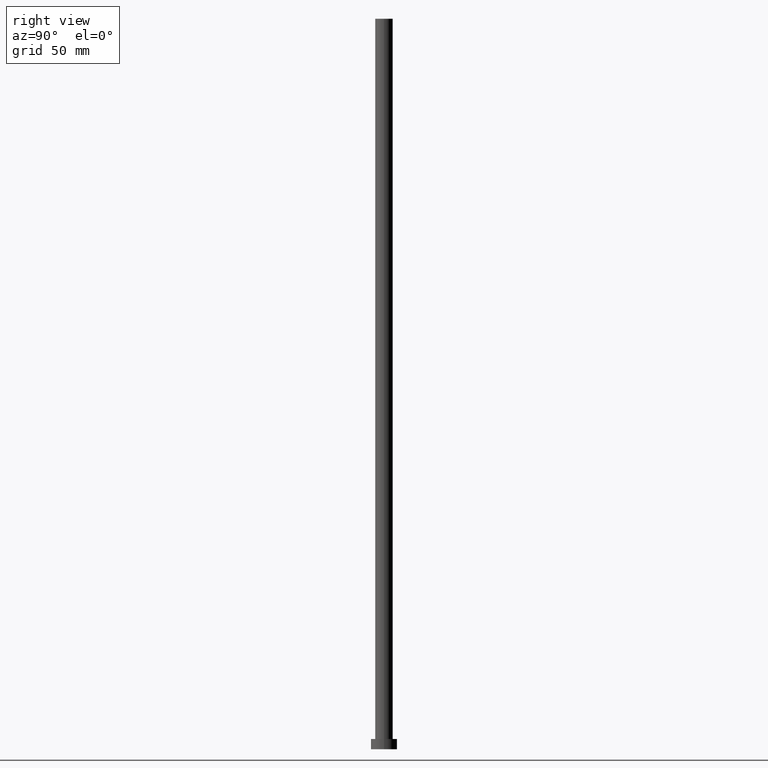
[diagram: clean part render]
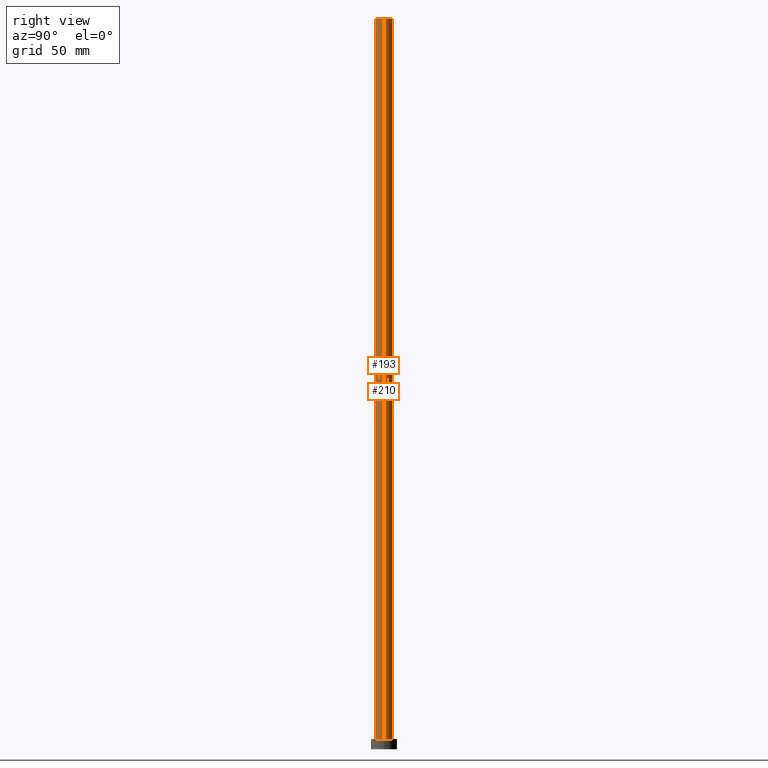
[diagram: same view with one multi-face feature highlighted, each face labeled with its STEP entity id]
A machine part, right view. The highlighted faces form ONE feature: a constant-radius fillet chain: 2 tangent blend faces with common blend radius 6 mm. The faces share edges in the B-rep.
Their STEP definitions:
[1] entity #193 (Cylinder):
#6 = DIRECTION ( 'NONE',  ( 1.000000000000000000, 0.000000000000000000, 0.000000000000000000 ) ) ;
#14 = LINE ( 'NONE', #172, #73 ) ;
#23 = DIRECTION ( 'NONE',  ( -0.000000000000000000, -0.000000000000000000, -1.000000000000000000 ) ) ;
#28 = EDGE_CURVE ( 'NONE', #55, #75, #158, .T. ) ;
#31 = ORIENTED_EDGE ( 'NONE', *, *, #170, .T. ) ;
#37 = ORIENTED_EDGE ( 'NONE', *, *, #162, .F. ) ;
#38 = AXIS2_PLACEMENT_3D ( 'NONE', #169, #151, #6 ) ;
#44 = CARTESIAN_POINT ( 'NONE',  ( 0.000000000000000000, 0.000000000000000000, 7.000000000000000000 ) ) ;
#55 = VERTEX_POINT ( 'NONE', #163 ) ;
#73 = VECTOR ( 'NONE', #78, 1000.000000000000000 ) ;
#75 = VERTEX_POINT ( 'NONE', #224 ) ;
#78 = DIRECTION ( 'NONE',  ( -0.000000000000000000, -0.000000000000000000, -1.000000000000000000 ) ) ;
#94 = DIRECTION ( 'NONE',  ( -0.000000000000000000, -0.000000000000000000, -1.000000000000000000 ) ) ;
#99 = ORIENTED_EDGE ( 'NONE', *, *, #234, .T. ) ;
#113 = VERTEX_POINT ( 'NONE', #211 ) ;
#125 = CARTESIAN_POINT ( 'NONE',  ( 6.000000000000000888, 7.347880794884120722E-16, 500.0000000000000000 ) ) ;
#143 = CIRCLE ( 'NONE', #196, 6.000000000000000888 ) ;
#151 = DIRECTION ( 'NONE',  ( 0.000000000000000000, 0.000000000000000000, 1.000000000000000000 ) ) ;
#153 = CYLINDRICAL_SURFACE ( 'NONE', #235, 6.000000000000000888 ) ;
#158 = CIRCLE ( 'NONE', #38, 6.000000000000000888 ) ;
#160 = VERTEX_POINT ( 'NONE', #190 ) ;
#162 = EDGE_CURVE ( 'NONE', #75, #160, #167, .T. ) ;
#163 = CARTESIAN_POINT ( 'NONE',  ( -6.000000000000000888, 0.000000000000000000, 500.0000000000000000 ) ) ;
#165 = ORIENTED_EDGE ( 'NONE', *, *, #28, .F. ) ;
#167 = LINE ( 'NONE', #125, #173 ) ;
#169 = CARTESIAN_POINT ( 'NONE',  ( 0.000000000000000000, 0.000000000000000000, 500.0000000000000000 ) ) ;
#170 = EDGE_CURVE ( 'NONE', #55, #113, #14, .T. ) ;
#172 = CARTESIAN_POINT ( 'NONE',  ( -6.000000000000000888, 0.000000000000000000, 500.0000000000000000 ) ) ;
#173 = VECTOR ( 'NONE', #94, 1000.000000000000000 ) ;
#190 = CARTESIAN_POINT ( 'NONE',  ( 6.000000000000000888, 7.347880794884120722E-16, 7.000000000000000000 ) ) ;
#193 = ADVANCED_FACE ( 'NONE', ( #239 ), #153, .T. ) ;
#196 = AXIS2_PLACEMENT_3D ( 'NONE', #44, #252, #230 ) ;
#204 = EDGE_LOOP ( 'NONE', ( #37, #165, #31, #99 ) ) ;
#211 = CARTESIAN_POINT ( 'NONE',  ( -6.000000000000000888, 0.000000000000000000, 7.000000000000000000 ) ) ;
#224 = CARTESIAN_POINT ( 'NONE',  ( 6.000000000000000888, 7.347880794884120722E-16, 500.0000000000000000 ) ) ;
#226 = DIRECTION ( 'NONE',  ( -1.000000000000000000, 0.000000000000000000, 0.000000000000000000 ) ) ;
#230 = DIRECTION ( 'NONE',  ( 1.000000000000000000, 0.000000000000000000, 0.000000000000000000 ) ) ;
#231 = CARTESIAN_POINT ( 'NONE',  ( 0.000000000000000000, 0.000000000000000000, 500.0000000000000000 ) ) ;
#234 = EDGE_CURVE ( 'NONE', #113, #160, #143, .T. ) ;
#235 = AXIS2_PLACEMENT_3D ( 'NONE', #231, #23, #226 ) ;
#239 = FACE_OUTER_BOUND ( 'NONE', #204, .T. ) ;
#252 = DIRECTION ( 'NONE',  ( 0.000000000000000000, 0.000000000000000000, 1.000000000000000000 ) ) ;
[2] entity #210 (Cylinder):
#3 = DIRECTION ( 'NONE',  ( 0.000000000000000000, 0.000000000000000000, 1.000000000000000000 ) ) ;
#9 = ORIENTED_EDGE ( 'NONE', *, *, #106, .F. ) ;
#12 = DIRECTION ( 'NONE',  ( -1.000000000000000000, 0.000000000000000000, 0.000000000000000000 ) ) ;
#14 = LINE ( 'NONE', #172, #73 ) ;
#33 = EDGE_CURVE ( 'NONE', #160, #113, #134, .T. ) ;
#55 = VERTEX_POINT ( 'NONE', #163 ) ;
#73 = VECTOR ( 'NONE', #78, 1000.000000000000000 ) ;
#75 = VERTEX_POINT ( 'NONE', #224 ) ;
#78 = DIRECTION ( 'NONE',  ( -0.000000000000000000, -0.000000000000000000, -1.000000000000000000 ) ) ;
#88 = AXIS2_PLACEMENT_3D ( 'NONE', #183, #89, #12 ) ;
#89 = DIRECTION ( 'NONE',  ( -0.000000000000000000, -0.000000000000000000, -1.000000000000000000 ) ) ;
#94 = DIRECTION ( 'NONE',  ( -0.000000000000000000, -0.000000000000000000, -1.000000000000000000 ) ) ;
#106 = EDGE_CURVE ( 'NONE', #75, #55, #227, .T. ) ;
#107 = FACE_OUTER_BOUND ( 'NONE', #111, .T. ) ;
#111 = EDGE_LOOP ( 'NONE', ( #9, #246, #119, #131 ) ) ;
#112 = DIRECTION ( 'NONE',  ( 1.000000000000000000, 0.000000000000000000, 0.000000000000000000 ) ) ;
#113 = VERTEX_POINT ( 'NONE', #211 ) ;
#119 = ORIENTED_EDGE ( 'NONE', *, *, #33, .T. ) ;
#125 = CARTESIAN_POINT ( 'NONE',  ( 6.000000000000000888, 7.347880794884120722E-16, 500.0000000000000000 ) ) ;
#131 = ORIENTED_EDGE ( 'NONE', *, *, #170, .F. ) ;
#134 = CIRCLE ( 'NONE', #161, 6.000000000000000888 ) ;
#160 = VERTEX_POINT ( 'NONE', #190 ) ;
#161 = AXIS2_PLACEMENT_3D ( 'NONE', #216, #3, #208 ) ;
#162 = EDGE_CURVE ( 'NONE', #75, #160, #167, .T. ) ;
#163 = CARTESIAN_POINT ( 'NONE',  ( -6.000000000000000888, 0.000000000000000000, 500.0000000000000000 ) ) ;
#167 = LINE ( 'NONE', #125, #173 ) ;
#170 = EDGE_CURVE ( 'NONE', #55, #113, #14, .T. ) ;
#172 = CARTESIAN_POINT ( 'NONE',  ( -6.000000000000000888, 0.000000000000000000, 500.0000000000000000 ) ) ;
#173 = VECTOR ( 'NONE', #94, 1000.000000000000000 ) ;
#183 = CARTESIAN_POINT ( 'NONE',  ( 0.000000000000000000, 0.000000000000000000, 500.0000000000000000 ) ) ;
#190 = CARTESIAN_POINT ( 'NONE',  ( 6.000000000000000888, 7.347880794884120722E-16, 7.000000000000000000 ) ) ;
#195 = AXIS2_PLACEMENT_3D ( 'NONE', #228, #213, #112 ) ;
#208 = DIRECTION ( 'NONE',  ( 1.000000000000000000, 0.000000000000000000, 0.000000000000000000 ) ) ;
#210 = ADVANCED_FACE ( 'NONE', ( #107 ), #243, .T. ) ;
#211 = CARTESIAN_POINT ( 'NONE',  ( -6.000000000000000888, 0.000000000000000000, 7.000000000000000000 ) ) ;
#213 = DIRECTION ( 'NONE',  ( 0.000000000000000000, 0.000000000000000000, 1.000000000000000000 ) ) ;
#216 = CARTESIAN_POINT ( 'NONE',  ( 0.000000000000000000, 0.000000000000000000, 7.000000000000000000 ) ) ;
#224 = CARTESIAN_POINT ( 'NONE',  ( 6.000000000000000888, 7.347880794884120722E-16, 500.0000000000000000 ) ) ;
#227 = CIRCLE ( 'NONE', #195, 6.000000000000000888 ) ;
#228 = CARTESIAN_POINT ( 'NONE',  ( 0.000000000000000000, 0.000000000000000000, 500.0000000000000000 ) ) ;
#243 = CYLINDRICAL_SURFACE ( 'NONE', #88, 6.000000000000000888 ) ;
#246 = ORIENTED_EDGE ( 'NONE', *, *, #162, .T. ) ;